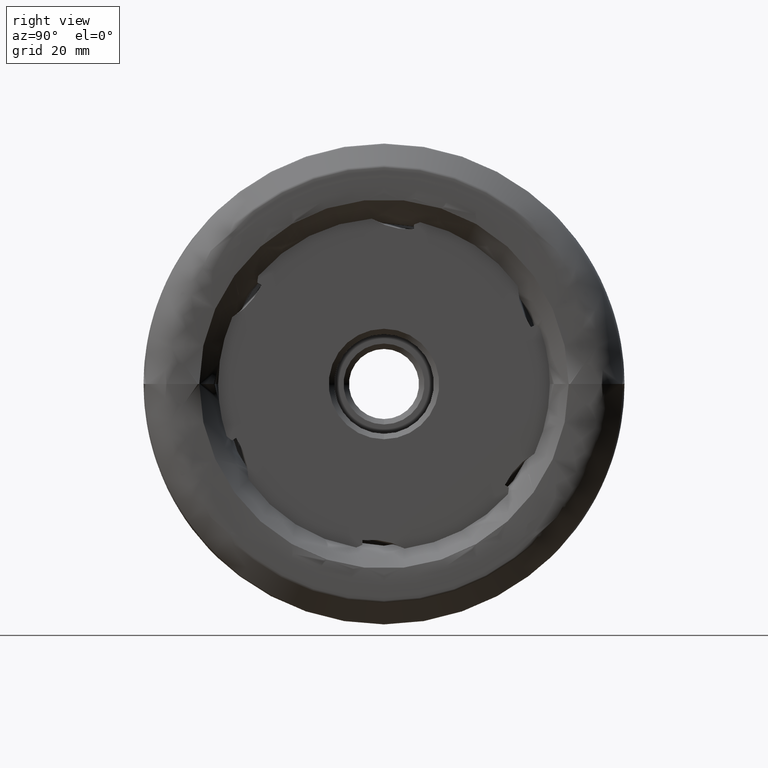
[diagram: clean part render]
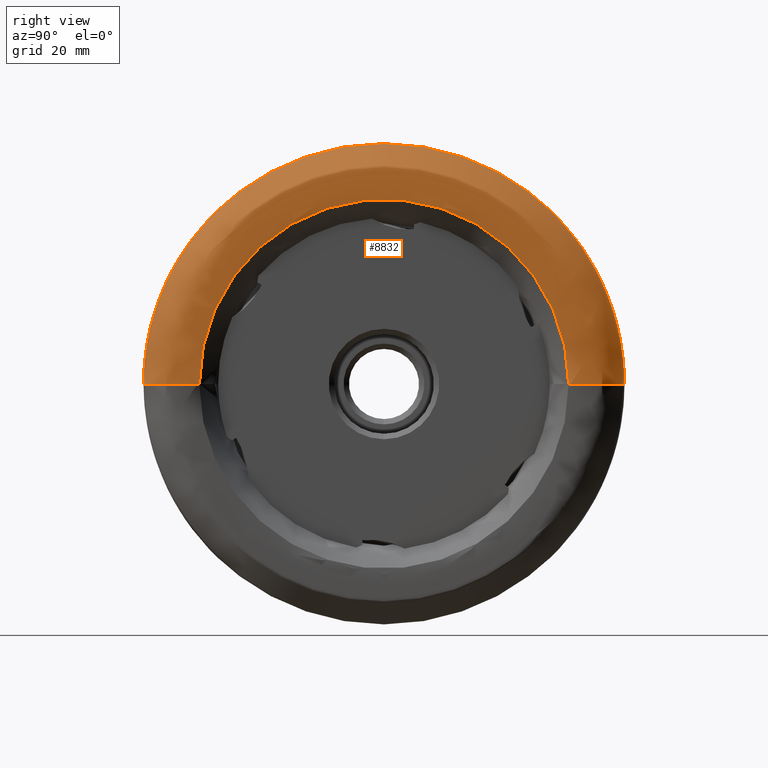
[diagram: same view with one face highlighted and labeled with its STEP entity id]
A machine part, right view. The second image highlights one B-rep face of the part: STEP entity #8832.
In plain terms, the highlighted face is a freeform B-spline surface patch.
Its self-contained STEP definition (entity closure, byte-faithful):
#19 = EDGE_CURVE ( 'NONE', #1967, #10062, #4942, .T. ) ;
#30 = CARTESIAN_POINT ( 'NONE',  ( -2.857547258039371500, -44.24553276553912400, 5.418515007788681300E-015 ) ) ;
#32 = CARTESIAN_POINT ( 'NONE',  ( 0.8509547540895763300, 34.89659801551494000, 69.79319603102986500 ) ) ;
#68 = CARTESIAN_POINT ( 'NONE',  ( 0.8281783631124288700, 39.02712218178233900, 0.0000000000000000000 ) ) ;
#101 = CARTESIAN_POINT ( 'NONE',  ( 0.7147429273705037100, 40.52220272673386600, 0.0000000000000000000 ) ) ;
#137 = CARTESIAN_POINT ( 'NONE',  ( 0.8577489872061617700, 39.55864534057265300, 79.11729068114529200 ) ) ;
#171 = CARTESIAN_POINT ( 'NONE',  ( -3.411888034541815900, -44.60575566999408900, 5.462629590480715500E-015 ) ) ;
#200 = CARTESIAN_POINT ( 'NONE',  ( -3.040789034936305100, -44.44875549938974000, 88.89751099877950900 ) ) ;
#228 = CARTESIAN_POINT ( 'NONE',  ( -6.006263750203498100, 44.59773207079095400, 89.19546414158189400 ) ) ;
#265 = CARTESIAN_POINT ( 'NONE',  ( -1.685880218017781400, 43.02580337470713800, 0.0000000000000000000 ) ) ;
#297 = CARTESIAN_POINT ( 'NONE',  ( -4.082156656787272000, 44.59971569938962000, 0.0000000000000000000 ) ) ;
#321 = CARTESIAN_POINT ( 'NONE',  ( -9.937897549921320500, -43.49536033219780500, 86.99072066439561000 ) ) ;
#354 = CARTESIAN_POINT ( 'NONE',  ( -6.791615352935969500, -44.59675962175614200, 5.461527892312757000E-015 ) ) ;
#388 = CARTESIAN_POINT ( 'NONE',  ( -9.937897549921331100, 43.49536033219781200, 86.99072066439562400 ) ) ;
#415 = CARTESIAN_POINT ( 'NONE',  ( 0.8563129192456149200, 38.55294077964669000, 0.0000000000000000000 ) ) ;
#422 = CARTESIAN_POINT ( 'NONE',  ( -11.74160571971169600, 41.61055073359398900, 0.0000000000000000000 ) ) ;
#453 = CARTESIAN_POINT ( 'NONE',  ( -10.79325729475553300, -42.60098473533624000, 5.217115959665477000E-015 ) ) ;
#479 = CARTESIAN_POINT ( 'NONE',  ( 0.6918135066200279400, -34.26065241204572900, 68.52130482409145900 ) ) ;
#560 = CARTESIAN_POINT ( 'NONE',  ( 0.2537050275753798800, 41.00064699497971800, 0.0000000000000000000 ) ) ;
#566 = DIRECTION ( 'NONE',  ( -1.075953645633044000E-016, 1.000000000000000000, 0.0000000000000000000 ) ) ;
#586 = CARTESIAN_POINT ( 'NONE',  ( -9.037115511167799700, 44.44632518124438300, 0.0000000000000000000 ) ) ;
#691 = CARTESIAN_POINT ( 'NONE',  ( -9.690875032667182900, 43.75316444833940500, 0.0000000000000000000 ) ) ;
#711 = CARTESIAN_POINT ( 'NONE',  ( 0.7370904015919900200, -34.31544975722086800, 4.202430570648235200E-015 ) ) ;
#721 = CARTESIAN_POINT ( 'NONE',  ( -8.869488128814124300, 44.57365792961629600, 0.0000000000000000000 ) ) ;
#763 = ORIENTED_EDGE ( 'NONE', *, *, #6098, .T. ) ;
#778 = CARTESIAN_POINT ( 'NONE',  ( 0.8535049897897371000, 36.98866256118815700, 73.97732512237630000 ) ) ;
#807 = CARTESIAN_POINT ( 'NONE',  ( -3.411888034541815900, -44.60575566999408900, 5.462629590480715500E-015 ) ) ;
#809 = CARTESIAN_POINT ( 'NONE',  ( 0.8271839300367778100, 35.24604635264782400, 70.49209270529563300 ) ) ;
#845 = CARTESIAN_POINT ( 'NONE',  ( 0.7147429273705135900, -40.52220272673387300, 4.962538586369478100E-015 ) ) ;
#847 = CARTESIAN_POINT ( 'NONE',  ( 0.8577489872061714300, -39.55864534057266700, 4.844536839493766100E-015 ) ) ;
#889 = CARTESIAN_POINT ( 'NONE',  ( -0.3373458993539678000, -41.61322163339939100, 5.096149867555195200E-015 ) ) ;
#890 = CARTESIAN_POINT ( 'NONE',  ( 0.7147429273705134800, -40.52220272673386600, 81.04440545346773200 ) ) ;
#928 = CARTESIAN_POINT ( 'NONE',  ( -1.685880218017771000, -43.02580337470714500, 5.269141238357848000E-015 ) ) ;
#930 = CARTESIAN_POINT ( 'NONE',  ( 0.8200688177384685100, 40.35716822564896900, 0.0000000000000000000 ) ) ;
#963 = CARTESIAN_POINT ( 'NONE',  ( -3.676313007157163700, -44.59391589396968000, 5.461179636099624200E-015 ) ) ;
#997 = CARTESIAN_POINT ( 'NONE',  ( -5.235286181612497800, -44.59774497095866500, 89.19548994191735900 ) ) ;
#1033 = CARTESIAN_POINT ( 'NONE',  ( -2.161834821111666000, 43.52247311242808100, 0.0000000000000000000 ) ) ;
#1062 = CARTESIAN_POINT ( 'NONE',  ( -1.024317240285059800, -42.33403745129263700, 84.66807490258527500 ) ) ;
#1093 = CARTESIAN_POINT ( 'NONE',  ( -4.082156656787261400, -44.59971569938962700, 5.461889907413946000E-015 ) ) ;
#1128 = CARTESIAN_POINT ( 'NONE',  ( -12.40362932795348700, -40.92572687284331300, 81.85145374568661200 ) ) ;
#1163 = CARTESIAN_POINT ( 'NONE',  ( -9.437275947955262400, -44.02027069702258200, 88.04054139404517800 ) ) ;
#1196 = CARTESIAN_POINT ( 'NONE',  ( -12.12578667149713500, 41.20390703517603000, 0.0000000000000000000 ) ) ;
#1221 = CARTESIAN_POINT ( 'NONE',  ( 0.8550758284377958400, 34.64878102038525800, 0.0000000000000000000 ) ) ;
#1228 = CARTESIAN_POINT ( 'NONE',  ( -12.12578667149712400, -41.20390703517603700, 5.046023286299343200E-015 ) ) ;
#1265 = CARTESIAN_POINT ( 'NONE',  ( -9.690875032667182900, 43.75316444833941200, 87.50632889667882400 ) ) ;
#1328 = CARTESIAN_POINT ( 'NONE',  ( 0.8509547540895763300, 34.89659801551494000, 0.0000000000000000000 ) ) ;
#1362 = CARTESIAN_POINT ( 'NONE',  ( -2.564873001782992800, 43.94741812827402300, 0.0000000000000000000 ) ) ;
#1403 = CARTESIAN_POINT ( 'NONE',  ( -11.32576151948207300, 42.04363582463820100, 0.0000000000000000000 ) ) ;
#1410 = CARTESIAN_POINT ( 'NONE',  ( -12.56707975135014800, 40.77434408307883700, 0.0000000000000000000 ) ) ;
#1587 = CARTESIAN_POINT ( 'NONE',  ( 0.8244240272102382200, -36.42198083215118500, 4.460406224470018900E-015 ) ) ;
#1588 = CARTESIAN_POINT ( 'NONE',  ( 0.8550758284378042800, -34.64878102038526500, 4.243251877097237300E-015 ) ) ;
#1623 = CARTESIAN_POINT ( 'NONE',  ( -6.791615352935969500, -44.59675962175614200, 5.461527892312757000E-015 ) ) ;
#1625 = CARTESIAN_POINT ( 'NONE',  ( 0.8271839300367778100, 35.24604635264782400, 0.0000000000000000000 ) ) ;
#1667 = CARTESIAN_POINT ( 'NONE',  ( -6.006263750203488300, -44.59773207079095400, 5.461646982972539600E-015 ) ) ;
#1668 = CARTESIAN_POINT ( 'NONE',  ( 0.8529010014972986400, -40.00270055782285500, 4.898917919538779000E-015 ) ) ;
#1697 = CARTESIAN_POINT ( 'NONE',  ( -3.194373711674057600, -44.56864490838977100, 5.458084832939450800E-015 ) ) ;
#1698 = CARTESIAN_POINT ( 'NONE',  ( 0.8268846359753936300, 34.43496531841479000, 0.0000000000000000000 ) ) ;
#1733 = CARTESIAN_POINT ( 'NONE',  ( -5.235286181612497800, -44.59774497095868600, 5.461648562787451200E-015 ) ) ;
#1734 = CARTESIAN_POINT ( 'NONE',  ( 0.8200688177384782800, -40.35716822564897700, 4.942327689019227800E-015 ) ) ;
#1771 = CARTESIAN_POINT ( 'NONE',  ( -3.194373711674068700, 44.56864490838976400, 0.0000000000000000000 ) ) ;
#1806 = CARTESIAN_POINT ( 'NONE',  ( -5.235286181612497800, -44.59774497095868600, 5.461648562787451200E-015 ) ) ;
#1821 = CARTESIAN_POINT ( 'NONE',  ( -12.61780826664820400, -3.839212668593813500E-015, 0.0000000000000000000 ) ) ;
#1838 = CARTESIAN_POINT ( 'NONE',  ( -2.564873001782992400, 43.94741812827403000, 87.89483625654804700 ) ) ;
#1868 = CARTESIAN_POINT ( 'NONE',  ( -0.3373458993539678000, -41.61322163339939100, 5.096149867555195200E-015 ) ) ;
#1900 = CARTESIAN_POINT ( 'NONE',  ( -4.551876553009373400, 44.59708507197870400, 0.0000000000000000000 ) ) ;
#1933 = CARTESIAN_POINT ( 'NONE',  ( -7.459931373188229700, 44.59910180076296600, 0.0000000000000000000 ) ) ;
#1967 = VERTEX_POINT ( 'NONE', #6851 ) ;
#1971 = CARTESIAN_POINT ( 'NONE',  ( -8.869488128814124300, 44.57365792961629600, 89.14731585923257700 ) ) ;
#1990 = ORIENTED_EDGE ( 'NONE', *, *, #8937, .F. ) ;
#2007 = CARTESIAN_POINT ( 'NONE',  ( -8.036312695753661500, 44.58888911488936200, 0.0000000000000000000 ) ) ;
#2036 = CARTESIAN_POINT ( 'NONE',  ( -1.024317240285070000, 42.33403745129263000, 0.0000000000000000000 ) ) ;
#2040 = CARTESIAN_POINT ( 'NONE',  ( -6.791615352935969500, -44.59675962175612100, 89.19351924351227000 ) ) ;
#2070 = CARTESIAN_POINT ( 'NONE',  ( -9.037115511167799700, 44.44632518124438300, 0.0000000000000000000 ) ) ;
#2130 = CARTESIAN_POINT ( 'NONE',  ( 0.8281783631124288700, 39.02712218178233900, 0.0000000000000000000 ) ) ;
#2157 = CARTESIAN_POINT ( 'NONE',  ( -9.937897549921331100, 43.49536033219781200, 0.0000000000000000000 ) ) ;
#2249 = CARTESIAN_POINT ( 'NONE',  ( -6.006263750203499000, 44.59773207079094700, 0.0000000000000000000 ) ) ;
#2299 = CARTESIAN_POINT ( 'NONE',  ( 0.8268846359754019600, -34.43496531841479700, 4.217067005594679900E-015 ) ) ;
#2373 = CARTESIAN_POINT ( 'NONE',  ( 0.8509547540895847600, -34.89659801551494700, 4.273600706083224900E-015 ) ) ;
#2412 = CARTESIAN_POINT ( 'NONE',  ( 0.8550758284377958400, 34.64878102038525800, 0.0000000000000000000 ) ) ;
#2445 = CARTESIAN_POINT ( 'NONE',  ( -8.036312695753650800, -44.58888911488936900, 5.460564033208551900E-015 ) ) ;
#2446 = CARTESIAN_POINT ( 'NONE',  ( 0.8529010014972888700, 40.00270055782284100, 80.00540111564566800 ) ) ;
#2485 = CARTESIAN_POINT ( 'NONE',  ( -10.34059757357388100, -43.07404444301239000, 5.275049065346595300E-015 ) ) ;
#2486 = CARTESIAN_POINT ( 'NONE',  ( 0.8661904671703387600, 35.78777477931783600, 71.57554955863565700 ) ) ;
#2522 = CARTESIAN_POINT ( 'NONE',  ( -12.56707975135013400, -40.77434408307885100, 4.993416996867532300E-015 ) ) ;
#2523 = CARTESIAN_POINT ( 'NONE',  ( 0.8577489872061617700, 39.55864534057266000, 0.0000000000000000000 ) ) ;
#2557 = CARTESIAN_POINT ( 'NONE',  ( 0.5394270403904379800, -40.69476609026918400, 4.983671503449839900E-015 ) ) ;
#2588 = CARTESIAN_POINT ( 'NONE',  ( -6.006263750203499000, 44.59773207079094700, 0.0000000000000000000 ) ) ;
#2608 = CIRCLE ( 'NONE', #7596, 34.26065241204573700 ) ;
#2627 = CARTESIAN_POINT ( 'NONE',  ( -1.685880218017771000, -43.02580337470713100, 86.05160674941427600 ) ) ;
#2668 = CARTESIAN_POINT ( 'NONE',  ( -2.857547258039382100, 44.24553276553911700, 0.0000000000000000000 ) ) ;
#2701 = CARTESIAN_POINT ( 'NONE',  ( -8.869488128814113600, -44.57365792961628900, 89.14731585923259200 ) ) ;
#2735 = CARTESIAN_POINT ( 'NONE',  ( -9.216923002752205100, -44.24400898714824800, 5.418328398755781900E-015 ) ) ;
#2764 = ORIENTED_EDGE ( 'NONE', *, *, #19, .F. ) ;
#2770 = CARTESIAN_POINT ( 'NONE',  ( -8.519304146182705000, -44.61938358472999500, 5.464298528696753200E-015 ) ) ;
#2802 = CARTESIAN_POINT ( 'NONE',  ( -11.74160571971168700, -41.61055073359398900, 83.22110146718796400 ) ) ;
#2829 = CARTESIAN_POINT ( 'NONE',  ( -3.040789034936315800, 44.44875549938975500, 0.0000000000000000000 ) ) ;
#2834 = CARTESIAN_POINT ( 'NONE',  ( -11.32576151948206300, -42.04363582463820800, 5.148860403716016600E-015 ) ) ;
#2862 = CARTESIAN_POINT ( 'NONE',  ( -1.685880218017781400, 43.02580337470713800, 0.0000000000000000000 ) ) ;
#2936 = CARTESIAN_POINT ( 'NONE',  ( 0.7147429273705037100, 40.52220272673386600, 0.0000000000000000000 ) ) ;
#2999 = CARTESIAN_POINT ( 'NONE',  ( -5.235286181612508500, 44.59774497095867900, 0.0000000000000000000 ) ) ;
#3035 = CARTESIAN_POINT ( 'NONE',  ( -9.216923002752215800, 44.24400898714824100, 0.0000000000000000000 ) ) ;
#3069 = CARTESIAN_POINT ( 'NONE',  ( -11.74160571971169600, 41.61055073359398900, 0.0000000000000000000 ) ) ;
#3152 = EDGE_CURVE ( 'NONE', #8586, #10062, #8500, .T. ) ;
#3160 = CARTESIAN_POINT ( 'NONE',  ( 0.8281783631124382000, -39.02712218178233200, 78.05424436356466300 ) ) ;
#3196 = CARTESIAN_POINT ( 'NONE',  ( 0.8529010014972986400, -40.00270055782285500, 4.898917919538779000E-015 ) ) ;
#3197 = CARTESIAN_POINT ( 'NONE',  ( 0.8661904671703388700, 35.78777477931783600, 0.0000000000000000000 ) ) ;
#3232 = CARTESIAN_POINT ( 'NONE',  ( 0.8563129192456242500, -38.55294077964669700, 4.721373552351177600E-015 ) ) ;
#3270 = CARTESIAN_POINT ( 'NONE',  ( -7.459931373188219100, -44.59910180076297300, 5.461814726515132200E-015 ) ) ;
#3273 = CARTESIAN_POINT ( 'NONE',  ( 0.8244240272102381100, -36.42198083215118500, 72.84396166430237000 ) ) ;
#3307 = CARTESIAN_POINT ( 'NONE',  ( -3.040789034936305100, -44.44875549938976200, 5.443402614841097000E-015 ) ) ;
#3309 = CARTESIAN_POINT ( 'NONE',  ( 0.8244240272102382200, -36.42198083215118500, 4.460406224470018900E-015 ) ) ;
#3338 = CARTESIAN_POINT ( 'NONE',  ( -4.551876553009362800, -44.59708507197871100, 5.461567748470092400E-015 ) ) ;
#3374 = CARTESIAN_POINT ( 'NONE',  ( -5.235286181612508500, 44.59774497095867900, 89.19548994191733000 ) ) ;
#3389 = DIRECTION ( 'NONE',  ( 1.000000000000000000, 1.214151309682137500E-016, -0.0000000000000000000 ) ) ;
#3407 = CARTESIAN_POINT ( 'NONE',  ( -2.161834821111655800, -43.52247311242808800, 5.329965738811179600E-015 ) ) ;
#3442 = CARTESIAN_POINT ( 'NONE',  ( -3.411888034541827000, 44.60575566999408200, 0.0000000000000000000 ) ) ;
#3471 = CARTESIAN_POINT ( 'NONE',  ( -3.411888034541827400, 44.60575566999408200, 89.21151133998816400 ) ) ;
#3505 = CARTESIAN_POINT ( 'NONE',  ( -8.519304146182715700, 44.61938358472998800, 89.23876716945996200 ) ) ;
#3539 = CARTESIAN_POINT ( 'NONE',  ( -9.690875032667172200, -43.75316444833941200, 5.358217279422662100E-015 ) ) ;
#3570 = CARTESIAN_POINT ( 'NONE',  ( -11.32576151948206300, -42.04363582463820100, 84.08727164927638900 ) ) ;
#3601 = CARTESIAN_POINT ( 'NONE',  ( 0.8271839300367778100, 35.24604635264782400, 0.0000000000000000000 ) ) ;
#3606 = CARTESIAN_POINT ( 'NONE',  ( -10.34059757357389100, 43.07404444301238300, 0.0000000000000000000 ) ) ;
#3633 = CARTESIAN_POINT ( 'NONE',  ( 0.8494888467939487600, 37.53217309214602400, 0.0000000000000000000 ) ) ;
#3642 = CARTESIAN_POINT ( 'NONE',  ( -8.519304146182705000, -44.61938358472998100, 89.23876716945997600 ) ) ;
#3668 = CARTESIAN_POINT ( 'NONE',  ( 0.8200688177384685100, 40.35716822564896900, 0.0000000000000000000 ) ) ;
#3715 = CARTESIAN_POINT ( 'NONE',  ( -12.56707975135013700, -40.77434408307884400, 4.993416996867532300E-015 ) ) ;
#3781 = CARTESIAN_POINT ( 'NONE',  ( -10.79325729475554300, 42.60098473533623300, 0.0000000000000000000 ) ) ;
#3812 = CARTESIAN_POINT ( 'NONE',  ( 0.6918135066200195000, 34.26065241204573700, 0.0000000000000000000 ) ) ;
#3822 = CARTESIAN_POINT ( 'NONE',  ( -12.40362932795348700, -40.92572687284332000, 5.011956041760638400E-015 ) ) ;
#3870 =( BOUNDED_SURFACE ( )  B_SPLINE_SURFACE ( 3, 3, ( 
 ( #3812, #9218, #479, #7296 ),
 ( #9577, #4850, #6472, #7259 ),
 ( #1698, #9617, #3963, #5568 ),
 ( #2412, #6406, #4783, #1588 ),
 ( #4103, #32, #7146, #2373 ),
 ( #1625, #809, #7954, #5595 ),
 ( #3197, #2486, #4745, #3995 ),
 ( #6511, #8033, #3273, #3309 ),
 ( #4896, #778, #8815, #6371 ),
 ( #4070, #4814, #8064, #8778 ),
 ( #8744, #8852, #9544, #7176 ),
 ( #7992, #9516, #9653, #3232 ),
 ( #68, #4036, #3160, #5634 ),
 ( #2523, #137, #5704, #847 ),
 ( #10299, #2446, #6444, #1668 ),
 ( #930, #8709, #7216, #1734 ),
 ( #101, #5668, #890, #8889 ),
 ( #9722, #5808, #5737, #2557 ),
 ( #8989, #7420, #9824, #4143 ),
 ( #7326, #9688, #4211, #1868 ),
 ( #7359, #4971, #1062, #4934 ),
 ( #265, #8169, #2627, #8920 ),
 ( #1033, #6611, #9792, #3407 ),
 ( #8200, #1838, #7391, #4275 ),
 ( #2668, #6667, #6642, #4180 ),
 ( #5062, #5038, #200, #8100 ),
 ( #1771, #9762, #5841, #8233 ),
 ( #3442, #3471, #4242, #171 ),
 ( #5770, #5006, #9022, #963 ),
 ( #297, #5876, #8136, #1093 ),
 ( #1900, #6581, #7450, #3338 ),
 ( #6547, #3374, #997, #1806 ),
 ( #2588, #228, #8955, #5094 ),
 ( #9921, #6695, #2040, #354 ),
 ( #1933, #9954, #5128, #8364 ),
 ( #2007, #5945, #6053, #5169 ),
 ( #5913, #3505, #3642, #2770 ),
 ( #4366, #1971, #2701, #9085 ),
 ( #2070, #9988, #6795, #7491 ),
 ( #9855, #7558, #4334, #2735 ),
 ( #8394, #8267, #1163, #9196 ),
 ( #6726, #1265, #8293, #3539 ),
 ( #9885, #388, #321, #7523 ),
 ( #3606, #7590, #4440, #9051 ),
 ( #5241, #9161, #4402, #453 ),
 ( #8325, #5198, #3570, #2834 ),
 ( #422, #9128, #2802, #5979 ),
 ( #1196, #6765, #6016, #1228 ),
 ( #6829, #4307, #1128, #3822 ),
 ( #1410, #6223, #6190, #3715 ),
 ( #4598, #9338, #10049, #7626 ) ),
 .UNSPECIFIED., .F., .F., .F. ) 
 B_SPLINE_SURFACE_WITH_KNOTS ( ( 4, 1, 1, 1, 1, 1, 1, 1, 1, 1, 1, 1, 1, 1, 1, 1, 1, 1, 1, 1, 1, 1, 1, 1, 1, 1, 1, 1, 1, 1, 1, 1, 1, 1, 1, 1, 1, 1, 1, 1, 1, 1, 1, 1, 1, 1, 1, 1, 4 ),
 ( 4, 4 ),
 ( 0.0000000000000000000, 0.004585205868869694300, 0.009555338785841614000, 0.01364510371246304200, 0.02083333693028275500, 0.03234754241875172800, 0.04901750361689164600, 0.06221460356393385800, 0.06934120355028777800, 0.08448146237685376400, 0.09445903366863565900, 0.1037023706445401200, 0.1154502966075726400, 0.1291232891281438000, 0.1327759396219717600, 0.1384462956328198500, 0.1413487620863585800, 0.1488813563808930300, 0.1657181892683783100, 0.1969259611364176900, 0.2138426416728223300, 0.2281837018743229100, 0.2418094101250725900, 0.2520770836508687800, 0.2554056266400155900, 0.2597121181433771900, 0.2644675166587636100, 0.2693859197494166700, 0.2770352483043920200, 0.2909173630968417400, 0.3000526436999086400, 0.3216267476983636400, 0.3412311129069803300, 0.3512941306468326800, 0.3652507230532056100, 0.3787859787379637100, 0.3829810441334750000, 0.3878478927399580100, 0.3920443844403347900, 0.4007232620734803000, 0.4082948248650746200, 0.4160910222379702300, 0.4240191201008264900, 0.4463275583533074000, 0.4588157765488829500, 0.4743192116254402200, 0.4855112707350934800, 0.4953079174321411400, 0.5000000000000001100 ),
 ( 0.0000000000000000000, 1.000000000000000000 ),
 .UNSPECIFIED. ) 
 GEOMETRIC_REPRESENTATION_ITEM ( )  RATIONAL_B_SPLINE_SURFACE ( (
 ( 1.000000000000000000, 0.3333333333333334300, 0.3333333333333334300, 1.000000000000000000),
 ( 1.000000000000000000, 0.3333333333333334300, 0.3333333333333334300, 1.000000000000000000),
 ( 1.000000000000000000, 0.3333333333333334300, 0.3333333333333334300, 1.000000000000000000),
 ( 1.000000000000000000, 0.3333333333333334300, 0.3333333333333334300, 1.000000000000000000),
 ( 1.000000000000000000, 0.3333333333333334300, 0.3333333333333334300, 1.000000000000000000),
 ( 1.000000000000000000, 0.3333333333333334300, 0.3333333333333334300, 1.000000000000000000),
 ( 1.000000000000000000, 0.3333333333333334300, 0.3333333333333334300, 1.000000000000000000),
 ( 1.000000000000000000, 0.3333333333333334300, 0.3333333333333334300, 1.000000000000000000),
 ( 1.000000000000000000, 0.3333333333333334300, 0.3333333333333334300, 1.000000000000000000),
 ( 1.000000000000000000, 0.3333333333333334300, 0.3333333333333334300, 1.000000000000000000),
 ( 1.000000000000000000, 0.3333333333333334300, 0.3333333333333334300, 1.000000000000000000),
 ( 1.000000000000000000, 0.3333333333333334300, 0.3333333333333334300, 1.000000000000000000),
 ( 1.000000000000000000, 0.3333333333333334300, 0.3333333333333334300, 1.000000000000000000),
 ( 1.000000000000000000, 0.3333333333333334300, 0.3333333333333334300, 1.000000000000000000),
 ( 1.000000000000000000, 0.3333333333333334300, 0.3333333333333334300, 1.000000000000000000),
 ( 1.000000000000000000, 0.3333333333333334300, 0.3333333333333334300, 1.000000000000000000),
 ( 1.000000000000000000, 0.3333333333333334300, 0.3333333333333334300, 1.000000000000000000),
 ( 1.000000000000000000, 0.3333333333333334300, 0.3333333333333334300, 1.000000000000000000),
 ( 1.000000000000000000, 0.3333333333333334300, 0.3333333333333334300, 1.000000000000000000),
 ( 1.000000000000000000, 0.3333333333333334300, 0.3333333333333334300, 1.000000000000000000),
 ( 1.000000000000000000, 0.3333333333333334300, 0.3333333333333334300, 1.000000000000000000),
 ( 1.000000000000000000, 0.3333333333333334300, 0.3333333333333334300, 1.000000000000000000),
 ( 1.000000000000000000, 0.3333333333333334300, 0.3333333333333334300, 1.000000000000000000),
 ( 1.000000000000000000, 0.3333333333333334300, 0.3333333333333334300, 1.000000000000000000),
 ( 1.000000000000000000, 0.3333333333333334300, 0.3333333333333334300, 1.000000000000000000),
 ( 1.000000000000000000, 0.3333333333333334300, 0.3333333333333334300, 1.000000000000000000),
 ( 1.000000000000000000, 0.3333333333333334300, 0.3333333333333334300, 1.000000000000000000),
 ( 1.000000000000000000, 0.3333333333333334300, 0.3333333333333334300, 1.000000000000000000),
 ( 1.000000000000000000, 0.3333333333333334300, 0.3333333333333334300, 1.000000000000000000),
 ( 1.000000000000000000, 0.3333333333333334300, 0.3333333333333334300, 1.000000000000000000),
 ( 1.000000000000000000, 0.3333333333333334300, 0.3333333333333334300, 1.000000000000000000),
 ( 1.000000000000000000, 0.3333333333333334300, 0.3333333333333334300, 1.000000000000000000),
 ( 1.000000000000000000, 0.3333333333333334300, 0.3333333333333334300, 1.000000000000000000),
 ( 1.000000000000000000, 0.3333333333333334300, 0.3333333333333334300, 1.000000000000000000),
 ( 1.000000000000000000, 0.3333333333333334300, 0.3333333333333334300, 1.000000000000000000),
 ( 1.000000000000000000, 0.3333333333333334300, 0.3333333333333334300, 1.000000000000000000),
 ( 1.000000000000000000, 0.3333333333333334300, 0.3333333333333334300, 1.000000000000000000),
 ( 1.000000000000000000, 0.3333333333333334300, 0.3333333333333334300, 1.000000000000000000),
 ( 1.000000000000000000, 0.3333333333333334300, 0.3333333333333334300, 1.000000000000000000),
 ( 1.000000000000000000, 0.3333333333333334300, 0.3333333333333334300, 1.000000000000000000),
 ( 1.000000000000000000, 0.3333333333333334300, 0.3333333333333334300, 1.000000000000000000),
 ( 1.000000000000000000, 0.3333333333333334300, 0.3333333333333334300, 1.000000000000000000),
 ( 1.000000000000000000, 0.3333333333333334300, 0.3333333333333334300, 1.000000000000000000),
 ( 1.000000000000000000, 0.3333333333333334300, 0.3333333333333334300, 1.000000000000000000),
 ( 1.000000000000000000, 0.3333333333333334300, 0.3333333333333334300, 1.000000000000000000),
 ( 1.000000000000000000, 0.3333333333333334300, 0.3333333333333334300, 1.000000000000000000),
 ( 1.000000000000000000, 0.3333333333333334300, 0.3333333333333334300, 1.000000000000000000),
 ( 1.000000000000000000, 0.3333333333333334300, 0.3333333333333334300, 1.000000000000000000),
 ( 1.000000000000000000, 0.3333333333333334300, 0.3333333333333334300, 1.000000000000000000),
 ( 1.000000000000000000, 0.3333333333333334300, 0.3333333333333334300, 1.000000000000000000),
 ( 1.000000000000000000, 0.3333333333333334300, 0.3333333333333334300, 1.000000000000000000) ) ) 
 REPRESENTATION_ITEM ( '' )  SURFACE ( )  );
#3874 = CARTESIAN_POINT ( 'NONE',  ( -9.437275947955273000, 44.02027069702258900, 0.0000000000000000000 ) ) ;
#3913 = CARTESIAN_POINT ( 'NONE',  ( -6.791615352935980200, 44.59675962175613500, 0.0000000000000000000 ) ) ;
#3963 = CARTESIAN_POINT ( 'NONE',  ( 0.8268846359754018500, -34.43496531841479000, 68.86993063682957900 ) ) ;
#3993 = CARTESIAN_POINT ( 'NONE',  ( 0.8281783631124383100, -39.02712218178234600, 4.779444025985240200E-015 ) ) ;
#3995 = CARTESIAN_POINT ( 'NONE',  ( 0.8661904671703475300, -35.78777477931784300, 4.382738383209795500E-015 ) ) ;
#4034 = CARTESIAN_POINT ( 'NONE',  ( -3.676313007157163700, -44.59391589396968000, 5.461179636099624200E-015 ) ) ;
#4036 = CARTESIAN_POINT ( 'NONE',  ( 0.8281783631124288700, 39.02712218178233200, 78.05424436356466300 ) ) ;
#4069 = CARTESIAN_POINT ( 'NONE',  ( -4.082156656787261400, -44.59971569938962700, 5.461889907413946000E-015 ) ) ;
#4070 = CARTESIAN_POINT ( 'NONE',  ( 0.8494888467939487600, 37.53217309214602400, 0.0000000000000000000 ) ) ;
#4102 = CARTESIAN_POINT ( 'NONE',  ( -9.690875032667172200, -43.75316444833941200, 5.358217279422662100E-015 ) ) ;
#4103 = CARTESIAN_POINT ( 'NONE',  ( 0.8509547540895763300, 34.89659801551494000, 0.0000000000000000000 ) ) ;
#4142 = CARTESIAN_POINT ( 'NONE',  ( 0.8200688177384782800, -40.35716822564897700, 4.942327689019227800E-015 ) ) ;
#4143 = CARTESIAN_POINT ( 'NONE',  ( 0.2537050275753898200, -41.00064699497972500, 5.021131110537246000E-015 ) ) ;
#4180 = CARTESIAN_POINT ( 'NONE',  ( -2.857547258039371500, -44.24553276553912400, 5.418515007788681300E-015 ) ) ;
#4211 = CARTESIAN_POINT ( 'NONE',  ( -0.3373458993539678000, -41.61322163339939100, 83.22644326679878200 ) ) ;
#4242 = CARTESIAN_POINT ( 'NONE',  ( -3.411888034541815900, -44.60575566999408200, 89.21151133998816400 ) ) ;
#4275 = CARTESIAN_POINT ( 'NONE',  ( -2.564873001782981700, -43.94741812827403000, 5.382006494158114900E-015 ) ) ;
#4307 = CARTESIAN_POINT ( 'NONE',  ( -12.40362932795349800, 40.92572687284331300, 81.85145374568662600 ) ) ;
#4334 = CARTESIAN_POINT ( 'NONE',  ( -9.216923002752203300, -44.24400898714823400, 88.48801797429648300 ) ) ;
#4366 = CARTESIAN_POINT ( 'NONE',  ( -8.869488128814124300, 44.57365792961629600, 0.0000000000000000000 ) ) ;
#4402 = CARTESIAN_POINT ( 'NONE',  ( -10.79325729475553300, -42.60098473533622600, 85.20196947067245200 ) ) ;
#4433 = CARTESIAN_POINT ( 'NONE',  ( -3.411888034541827000, 44.60575566999408200, 0.0000000000000000000 ) ) ;
#4440 = CARTESIAN_POINT ( 'NONE',  ( -10.34059757357388100, -43.07404444301237600, 86.14808888602475200 ) ) ;
#4468 = CARTESIAN_POINT ( 'NONE',  ( 0.8244240272102293400, 36.42198083215117800, 0.0000000000000000000 ) ) ;
#4598 = CARTESIAN_POINT ( 'NONE',  ( -12.61780826664821100, 40.72330260160279600, 0.0000000000000000000 ) ) ;
#4657 = CARTESIAN_POINT ( 'NONE',  ( -12.12578667149713500, 41.20390703517603000, 0.0000000000000000000 ) ) ;
#4688 = CARTESIAN_POINT ( 'NONE',  ( -12.40362932795349800, 40.92572687284331300, 0.0000000000000000000 ) ) ;
#4706 = CARTESIAN_POINT ( 'NONE',  ( 0.8509547540895847600, -34.89659801551494700, 4.273600706083224900E-015 ) ) ;
#4745 = CARTESIAN_POINT ( 'NONE',  ( 0.8661904671703474200, -35.78777477931783600, 71.57554955863567200 ) ) ;
#4783 = CARTESIAN_POINT ( 'NONE',  ( 0.8550758284378043900, -34.64878102038526500, 69.29756204077052900 ) ) ;
#4814 = CARTESIAN_POINT ( 'NONE',  ( 0.8494888467939487600, 37.53217309214602400, 75.06434618429203500 ) ) ;
#4820 = B_SPLINE_CURVE_WITH_KNOTS ( 'NONE', 3,
 ( #9293, #8357, #5192, #1221, #1328, #3601, #9980, #4468, #7620, #3633, #6891, #415, #2130, #7688, #5337, #3668, #2936, #9188, #560, #6790, #2036, #2862, #6151, #1362, #7551, #2829, #8388, #4433, #5233, #6044, #5474, #2999, #2249, #3913, #8622, #9365, #6928, #721, #586, #3035, #3874, #691, #2157, #9425, #3781, #1403, #3069, #4657, #4688, #6215, #10144 ),
 .UNSPECIFIED., .F., .F.,
 ( 4, 1, 1, 1, 1, 1, 1, 1, 1, 1, 1, 1, 1, 1, 1, 1, 1, 1, 1, 1, 1, 1, 1, 1, 1, 1, 1, 1, 1, 1, 1, 1, 1, 1, 1, 1, 1, 1, 1, 1, 1, 1, 1, 1, 1, 1, 1, 1, 4 ),
 ( 0.0000000000000000000, 0.004585205868869694300, 0.009555338785841614000, 0.01364510371246304200, 0.02083333693028275500, 0.03234754241875172800, 0.04901750361689164600, 0.06221460356393385800, 0.06934120355028777800, 0.08448146237685376400, 0.09445903366863565900, 0.1037023706445401200, 0.1154502966075726400, 0.1291232891281438000, 0.1327759396219717600, 0.1384462956328198500, 0.1413487620863585800, 0.1488813563808930300, 0.1657181892683783100, 0.1969259611364176900, 0.2138426416728223300, 0.2281837018743229100, 0.2418094101250725900, 0.2520770836508687800, 0.2554056266400155900, 0.2597121181433771900, 0.2644675166587636100, 0.2693859197494166700, 0.2770352483043920200, 0.2909173630968417400, 0.3000526436999086400, 0.3216267476983636400, 0.3412311129069803300, 0.3512941306468326800, 0.3652507230532056100, 0.3787859787379637100, 0.3829810441334750000, 0.3878478927399580100, 0.3920443844403347900, 0.4007232620734803000, 0.4082948248650746200, 0.4160910222379702300, 0.4240191201008264900, 0.4463275583533074000, 0.4588157765488829500, 0.4743192116254402200, 0.4855112707350934800, 0.4953079174321411400, 0.5000000000000001100 ),
 .UNSPECIFIED. ) ;
#4849 = CARTESIAN_POINT ( 'NONE',  ( -10.79325729475553300, -42.60098473533624000, 5.217115959665477000E-015 ) ) ;
#4850 = CARTESIAN_POINT ( 'NONE',  ( 0.7370904015919816900, 34.31544975722086800, 68.63089951444170800 ) ) ;
#4896 = CARTESIAN_POINT ( 'NONE',  ( 0.8535049897897369900, 36.98866256118815700, 0.0000000000000000000 ) ) ;
#4926 = CARTESIAN_POINT ( 'NONE',  ( -12.61780826664820900, 40.72330260160279600, 0.0000000000000000000 ) ) ;
#4933 = CARTESIAN_POINT ( 'NONE',  ( 0.8494888467939578600, -37.53217309214603100, 4.596365564234104600E-015 ) ) ;
#4934 = CARTESIAN_POINT ( 'NONE',  ( -1.024317240285059800, -42.33403745129263700, 5.184424345970969400E-015 ) ) ;
#4942 = B_SPLINE_CURVE_WITH_KNOTS ( 'NONE', 3,
 ( #10196, #711, #2299, #7882, #4706, #10266, #5533, #1587, #5632, #4933, #8743, #6510, #3993, #7952, #3196, #4142, #845, #8814, #9576, #889, #6443, #928, #5703, #7258, #30, #3307, #1697, #807, #4034, #4069, #6405, #1733, #1667, #1623, #3270, #2445, #7295, #8850, #9615, #7990, #9686, #4102, #5736, #2485, #4849, #6369, #9543, #7215, #7175, #2522, #8099 ),
 .UNSPECIFIED., .F., .F.,
 ( 4, 1, 1, 1, 1, 1, 1, 1, 1, 1, 1, 1, 1, 1, 1, 1, 1, 1, 1, 1, 1, 1, 1, 1, 1, 1, 1, 1, 1, 1, 1, 1, 1, 1, 1, 1, 1, 1, 1, 1, 1, 1, 1, 1, 1, 1, 1, 1, 4 ),
 ( 0.0000000000000000000, 0.004585205868869694300, 0.009555338785841614000, 0.01364510371246304200, 0.02083333693028275500, 0.03234754241875172800, 0.04901750361689164600, 0.06221460356393385800, 0.06934120355028777800, 0.08448146237685376400, 0.09445903366863565900, 0.1037023706445401200, 0.1154502966075726400, 0.1291232891281438000, 0.1327759396219717600, 0.1384462956328198500, 0.1413487620863585800, 0.1488813563808930300, 0.1657181892683783100, 0.1969259611364176900, 0.2138426416728223300, 0.2281837018743229100, 0.2418094101250725900, 0.2520770836508687800, 0.2554056266400155900, 0.2597121181433771900, 0.2644675166587636100, 0.2693859197494166700, 0.2770352483043920200, 0.2909173630968417400, 0.3000526436999086400, 0.3216267476983636400, 0.3412311129069803300, 0.3512941306468326800, 0.3652507230532056100, 0.3787859787379637100, 0.3829810441334750000, 0.3878478927399580100, 0.3920443844403347900, 0.4007232620734803000, 0.4082948248650746200, 0.4160910222379702300, 0.4240191201008264900, 0.4463275583533074000, 0.4588157765488829500, 0.4743192116254402200, 0.4855112707350934800, 0.4953079174321411400, 0.5000000000000000000 ),
 .UNSPECIFIED. ) ;
#4971 = CARTESIAN_POINT ( 'NONE',  ( -1.024317240285069800, 42.33403745129263700, 84.66807490258526100 ) ) ;
#4984 = DIRECTION ( 'NONE',  ( -8.519561848643047500E-017, 1.000000000000000000, 0.0000000000000000000 ) ) ;
#5006 = CARTESIAN_POINT ( 'NONE',  ( -3.676313007157174400, 44.59391589396968000, 89.18783178793933100 ) ) ;
#5038 = CARTESIAN_POINT ( 'NONE',  ( -3.040789034936315800, 44.44875549938975500, 88.89751099877948100 ) ) ;
#5062 = CARTESIAN_POINT ( 'NONE',  ( -3.040789034936315800, 44.44875549938975500, 0.0000000000000000000 ) ) ;
#5094 = CARTESIAN_POINT ( 'NONE',  ( -6.006263750203488300, -44.59773207079095400, 5.461646982972539600E-015 ) ) ;
#5128 = CARTESIAN_POINT ( 'NONE',  ( -7.459931373188220000, -44.59910180076295900, 89.19820360152593300 ) ) ;
#5169 = CARTESIAN_POINT ( 'NONE',  ( -8.036312695753650800, -44.58888911488936900, 5.460564033208551900E-015 ) ) ;
#5192 = CARTESIAN_POINT ( 'NONE',  ( 0.8268846359753936300, 34.43496531841479000, 0.0000000000000000000 ) ) ;
#5198 = CARTESIAN_POINT ( 'NONE',  ( -11.32576151948207300, 42.04363582463820100, 84.08727164927640300 ) ) ;
#5233 = CARTESIAN_POINT ( 'NONE',  ( -3.676313007157174800, 44.59391589396967200, 0.0000000000000000000 ) ) ;
#5241 = CARTESIAN_POINT ( 'NONE',  ( -10.79325729475554300, 42.60098473533623300, 0.0000000000000000000 ) ) ;
#5337 = CARTESIAN_POINT ( 'NONE',  ( 0.8529010014972889800, 40.00270055782284800, 0.0000000000000000000 ) ) ;
#5474 = CARTESIAN_POINT ( 'NONE',  ( -4.551876553009373400, 44.59708507197870400, 0.0000000000000000000 ) ) ;
#5533 = CARTESIAN_POINT ( 'NONE',  ( 0.8661904671703475300, -35.78777477931784300, 4.382738383209795500E-015 ) ) ;
#5568 = CARTESIAN_POINT ( 'NONE',  ( 0.8268846359754019600, -34.43496531841479700, 4.217067005594679900E-015 ) ) ;
#5595 = CARTESIAN_POINT ( 'NONE',  ( 0.8271839300367863600, -35.24604635264783100, 4.316395784836939700E-015 ) ) ;
#5632 = CARTESIAN_POINT ( 'NONE',  ( 0.8535049897897459800, -36.98866256118816400, 4.529804721030061700E-015 ) ) ;
#5634 = CARTESIAN_POINT ( 'NONE',  ( 0.8281783631124383100, -39.02712218178234600, 4.779444025985240200E-015 ) ) ;
#5668 = CARTESIAN_POINT ( 'NONE',  ( 0.7147429273705037100, 40.52220272673386600, 81.04440545346773200 ) ) ;
#5703 = CARTESIAN_POINT ( 'NONE',  ( -2.161834821111655800, -43.52247311242808800, 5.329965738811179600E-015 ) ) ;
#5704 = CARTESIAN_POINT ( 'NONE',  ( 0.8577489872061714300, -39.55864534057265300, 79.11729068114530600 ) ) ;
#5736 = CARTESIAN_POINT ( 'NONE',  ( -9.937897549921322200, -43.49536033219781900, 5.326645380858681300E-015 ) ) ;
#5737 = CARTESIAN_POINT ( 'NONE',  ( 0.5394270403904378700, -40.69476609026917700, 81.38953218053835300 ) ) ;
#5770 = CARTESIAN_POINT ( 'NONE',  ( -3.676313007157174800, 44.59391589396967200, 0.0000000000000000000 ) ) ;
#5808 = CARTESIAN_POINT ( 'NONE',  ( 0.5394270403904281000, 40.69476609026917700, 81.38953218053832500 ) ) ;
#5841 = CARTESIAN_POINT ( 'NONE',  ( -3.194373711674057600, -44.56864490838975700, 89.13728981677952800 ) ) ;
#5876 = CARTESIAN_POINT ( 'NONE',  ( -4.082156656787272000, 44.59971569938962700, 89.19943139877922500 ) ) ;
#5913 = CARTESIAN_POINT ( 'NONE',  ( -8.519304146182715700, 44.61938358472998800, 0.0000000000000000000 ) ) ;
#5945 = CARTESIAN_POINT ( 'NONE',  ( -8.036312695753661500, 44.58888911488936200, 89.17777822977871000 ) ) ;
#5979 = CARTESIAN_POINT ( 'NONE',  ( -11.74160571971168600, -41.61055073359399600, 5.095822776665442700E-015 ) ) ;
#6016 = CARTESIAN_POINT ( 'NONE',  ( -12.12578667149712600, -41.20390703517603700, 82.40781407035206000 ) ) ;
#6044 = CARTESIAN_POINT ( 'NONE',  ( -4.082156656787272000, 44.59971569938962000, 0.0000000000000000000 ) ) ;
#6053 = CARTESIAN_POINT ( 'NONE',  ( -8.036312695753650800, -44.58888911488935500, 89.17777822977872400 ) ) ;
#6098 = EDGE_CURVE ( 'NONE', #6802, #8586, #4820, .T. ) ;
#6151 = CARTESIAN_POINT ( 'NONE',  ( -2.161834821111666000, 43.52247311242808100, 0.0000000000000000000 ) ) ;
#6190 = CARTESIAN_POINT ( 'NONE',  ( -12.56707975135013700, -40.77434408307884400, 81.54868816615766000 ) ) ;
#6215 = CARTESIAN_POINT ( 'NONE',  ( -12.56707975135014800, 40.77434408307883700, 0.0000000000000000000 ) ) ;
#6223 = CARTESIAN_POINT ( 'NONE',  ( -12.56707975135014800, 40.77434408307884400, 81.54868816615768900 ) ) ;
#6369 = CARTESIAN_POINT ( 'NONE',  ( -11.32576151948206300, -42.04363582463820800, 5.148860403716016600E-015 ) ) ;
#6371 = CARTESIAN_POINT ( 'NONE',  ( 0.8535049897897459800, -36.98866256118816400, 4.529804721030061700E-015 ) ) ;
#6405 = CARTESIAN_POINT ( 'NONE',  ( -4.551876553009362800, -44.59708507197871100, 5.461567748470092400E-015 ) ) ;
#6406 = CARTESIAN_POINT ( 'NONE',  ( 0.8550758284377958400, 34.64878102038526500, 69.29756204077050100 ) ) ;
#6443 = CARTESIAN_POINT ( 'NONE',  ( -1.024317240285059800, -42.33403745129263700, 5.184424345970969400E-015 ) ) ;
#6444 = CARTESIAN_POINT ( 'NONE',  ( 0.8529010014972986400, -40.00270055782284100, 80.00540111564568200 ) ) ;
#6472 = CARTESIAN_POINT ( 'NONE',  ( 0.7370904015919900200, -34.31544975722086800, 68.63089951444173700 ) ) ;
#6510 = CARTESIAN_POINT ( 'NONE',  ( 0.8563129192456242500, -38.55294077964669700, 4.721373552351177600E-015 ) ) ;
#6511 = CARTESIAN_POINT ( 'NONE',  ( 0.8244240272102293400, 36.42198083215117800, 0.0000000000000000000 ) ) ;
#6547 = CARTESIAN_POINT ( 'NONE',  ( -5.235286181612508500, 44.59774497095867900, 0.0000000000000000000 ) ) ;
#6581 = CARTESIAN_POINT ( 'NONE',  ( -4.551876553009373400, 44.59708507197870400, 89.19417014395739300 ) ) ;
#6611 = CARTESIAN_POINT ( 'NONE',  ( -2.161834821111666000, 43.52247311242807400, 87.04494622485614700 ) ) ;
#6642 = CARTESIAN_POINT ( 'NONE',  ( -2.857547258039371500, -44.24553276553911000, 88.49106553107823500 ) ) ;
#6667 = CARTESIAN_POINT ( 'NONE',  ( -2.857547258039382100, 44.24553276553911700, 88.49106553107822000 ) ) ;
#6695 = CARTESIAN_POINT ( 'NONE',  ( -6.791615352935980200, 44.59675962175613500, 89.19351924351224200 ) ) ;
#6726 = CARTESIAN_POINT ( 'NONE',  ( -9.690875032667182900, 43.75316444833940500, 0.0000000000000000000 ) ) ;
#6765 = CARTESIAN_POINT ( 'NONE',  ( -12.12578667149713700, 41.20390703517603700, 82.40781407035207500 ) ) ;
#6790 = CARTESIAN_POINT ( 'NONE',  ( -0.3373458993539778500, 41.61322163339938400, 0.0000000000000000000 ) ) ;
#6795 = CARTESIAN_POINT ( 'NONE',  ( -9.037115511167789000, -44.44632518124437600, 88.89265036248876600 ) ) ;
#6802 = VERTEX_POINT ( 'NONE', #7393 ) ;
#6829 = CARTESIAN_POINT ( 'NONE',  ( -12.40362932795349800, 40.92572687284331300, 0.0000000000000000000 ) ) ;
#6851 = CARTESIAN_POINT ( 'NONE',  ( 0.6918135066200272700, -34.26065241204573700, 4.830009180003969500E-015 ) ) ;
#6891 = CARTESIAN_POINT ( 'NONE',  ( 0.8482931085073417400, 38.02624915461208100, 0.0000000000000000000 ) ) ;
#6901 = DIRECTION ( 'NONE',  ( 1.000000000000000000, 1.214151309682137500E-016, -0.0000000000000000000 ) ) ;
#6928 = CARTESIAN_POINT ( 'NONE',  ( -8.519304146182715700, 44.61938358472998800, 0.0000000000000000000 ) ) ;
#7146 = CARTESIAN_POINT ( 'NONE',  ( 0.8509547540895847600, -34.89659801551494000, 69.79319603102987900 ) ) ;
#7175 = CARTESIAN_POINT ( 'NONE',  ( -12.40362932795348500, -40.92572687284332000, 5.011956041760638400E-015 ) ) ;
#7176 = CARTESIAN_POINT ( 'NONE',  ( 0.8482931085073509600, -38.02624915461208800, 4.656872431077542800E-015 ) ) ;
#7215 = CARTESIAN_POINT ( 'NONE',  ( -12.12578667149712400, -41.20390703517603700, 5.046023286299343200E-015 ) ) ;
#7216 = CARTESIAN_POINT ( 'NONE',  ( 0.8200688177384781700, -40.35716822564896900, 80.71433645129793900 ) ) ;
#7258 = CARTESIAN_POINT ( 'NONE',  ( -2.564873001782981700, -43.94741812827403000, 5.382006494158114900E-015 ) ) ;
#7259 = CARTESIAN_POINT ( 'NONE',  ( 0.7370904015919900200, -34.31544975722087500, 4.202430570648235200E-015 ) ) ;
#7295 = CARTESIAN_POINT ( 'NONE',  ( -8.519304146182705000, -44.61938358472999500, 5.464298528696753200E-015 ) ) ;
#7296 = CARTESIAN_POINT ( 'NONE',  ( 0.6918135066200278300, -34.26065241204574400, 4.195719831311184900E-015 ) ) ;
#7326 = CARTESIAN_POINT ( 'NONE',  ( -0.3373458993539778500, 41.61322163339938400, 0.0000000000000000000 ) ) ;
#7359 = CARTESIAN_POINT ( 'NONE',  ( -1.024317240285070000, 42.33403745129263000, 0.0000000000000000000 ) ) ;
#7391 = CARTESIAN_POINT ( 'NONE',  ( -2.564873001782981700, -43.94741812827402300, 87.89483625654806100 ) ) ;
#7393 = CARTESIAN_POINT ( 'NONE',  ( 0.6918135066200195000, 34.26065241204573700, 0.0000000000000000000 ) ) ;
#7420 = CARTESIAN_POINT ( 'NONE',  ( 0.2537050275753798800, 41.00064699497971800, 82.00129398995942200 ) ) ;
#7450 = CARTESIAN_POINT ( 'NONE',  ( -4.551876553009362800, -44.59708507197869700, 89.19417014395740800 ) ) ;
#7461 = AXIS2_PLACEMENT_3D ( 'NONE', #1821, #3389, #4984 ) ;
#7491 = CARTESIAN_POINT ( 'NONE',  ( -9.037115511167789000, -44.44632518124439000, 5.443104986707333600E-015 ) ) ;
#7523 = CARTESIAN_POINT ( 'NONE',  ( -9.937897549921322200, -43.49536033219781900, 5.326645380858681300E-015 ) ) ;
#7551 = CARTESIAN_POINT ( 'NONE',  ( -2.857547258039382100, 44.24553276553911700, 0.0000000000000000000 ) ) ;
#7558 = CARTESIAN_POINT ( 'NONE',  ( -9.216923002752214000, 44.24400898714824100, 88.48801797429646900 ) ) ;
#7590 = CARTESIAN_POINT ( 'NONE',  ( -10.34059757357389100, 43.07404444301238300, 86.14808888602476600 ) ) ;
#7596 = AXIS2_PLACEMENT_3D ( 'NONE', #9268, #6901, #566 ) ;
#7620 = CARTESIAN_POINT ( 'NONE',  ( 0.8535049897897369900, 36.98866256118815700, 0.0000000000000000000 ) ) ;
#7626 = CARTESIAN_POINT ( 'NONE',  ( -12.61780826664820100, -40.72330260160280300, 4.987166218176194600E-015 ) ) ;
#7688 = CARTESIAN_POINT ( 'NONE',  ( 0.8577489872061617700, 39.55864534057266000, 0.0000000000000000000 ) ) ;
#7745 = CARTESIAN_POINT ( 'NONE',  ( -12.61780826664819900, -40.72330260160281100, 4.987166218176323200E-015 ) ) ;
#7880 = EDGE_LOOP ( 'NONE', ( #2764, #1990, #763, #9072 ) ) ;
#7882 = CARTESIAN_POINT ( 'NONE',  ( 0.8550758284378042800, -34.64878102038526500, 4.243251877097237300E-015 ) ) ;
#7952 = CARTESIAN_POINT ( 'NONE',  ( 0.8577489872061714300, -39.55864534057266700, 4.844536839493766100E-015 ) ) ;
#7954 = CARTESIAN_POINT ( 'NONE',  ( 0.8271839300367864700, -35.24604635264782400, 70.49209270529564700 ) ) ;
#7990 = CARTESIAN_POINT ( 'NONE',  ( -9.216923002752205100, -44.24400898714824800, 5.418328398755781900E-015 ) ) ;
#7992 = CARTESIAN_POINT ( 'NONE',  ( 0.8563129192456149200, 38.55294077964669000, 0.0000000000000000000 ) ) ;
#8033 = CARTESIAN_POINT ( 'NONE',  ( 0.8244240272102293400, 36.42198083215118500, 72.84396166430235600 ) ) ;
#8064 = CARTESIAN_POINT ( 'NONE',  ( 0.8494888467939578600, -37.53217309214602400, 75.06434618429204900 ) ) ;
#8099 = CARTESIAN_POINT ( 'NONE',  ( -12.61780826664819900, -40.72330260160281100, 4.987166218176323200E-015 ) ) ;
#8100 = CARTESIAN_POINT ( 'NONE',  ( -3.040789034936305100, -44.44875549938976200, 5.443402614841097000E-015 ) ) ;
#8136 = CARTESIAN_POINT ( 'NONE',  ( -4.082156656787261400, -44.59971569938961300, 89.19943139877925400 ) ) ;
#8169 = CARTESIAN_POINT ( 'NONE',  ( -1.685880218017781400, 43.02580337470713800, 86.05160674941426200 ) ) ;
#8200 = CARTESIAN_POINT ( 'NONE',  ( -2.564873001782992800, 43.94741812827402300, 0.0000000000000000000 ) ) ;
#8233 = CARTESIAN_POINT ( 'NONE',  ( -3.194373711674057600, -44.56864490838977100, 5.458084832939450800E-015 ) ) ;
#8267 = CARTESIAN_POINT ( 'NONE',  ( -9.437275947955273000, 44.02027069702258900, 88.04054139404516400 ) ) ;
#8293 = CARTESIAN_POINT ( 'NONE',  ( -9.690875032667172200, -43.75316444833939800, 87.50632889667879500 ) ) ;
#8325 = CARTESIAN_POINT ( 'NONE',  ( -11.32576151948207300, 42.04363582463820100, 0.0000000000000000000 ) ) ;
#8357 = CARTESIAN_POINT ( 'NONE',  ( 0.7370904015919816900, 34.31544975722086800, 0.0000000000000000000 ) ) ;
#8364 = CARTESIAN_POINT ( 'NONE',  ( -7.459931373188219100, -44.59910180076297300, 5.461814726515132200E-015 ) ) ;
#8388 = CARTESIAN_POINT ( 'NONE',  ( -3.194373711674068700, 44.56864490838976400, 0.0000000000000000000 ) ) ;
#8394 = CARTESIAN_POINT ( 'NONE',  ( -9.437275947955273000, 44.02027069702258900, 0.0000000000000000000 ) ) ;
#8500 = CIRCLE ( 'NONE', #7461, 40.72330260160280300 ) ;
#8586 = VERTEX_POINT ( 'NONE', #4926 ) ;
#8622 = CARTESIAN_POINT ( 'NONE',  ( -7.459931373188229700, 44.59910180076296600, 0.0000000000000000000 ) ) ;
#8709 = CARTESIAN_POINT ( 'NONE',  ( 0.8200688177384685100, 40.35716822564896900, 80.71433645129792500 ) ) ;
#8743 = CARTESIAN_POINT ( 'NONE',  ( 0.8482931085073509600, -38.02624915461208800, 4.656872431077542800E-015 ) ) ;
#8744 = CARTESIAN_POINT ( 'NONE',  ( 0.8482931085073417400, 38.02624915461208100, 0.0000000000000000000 ) ) ;
#8778 = CARTESIAN_POINT ( 'NONE',  ( 0.8494888467939578600, -37.53217309214603100, 4.596365564234104600E-015 ) ) ;
#8814 = CARTESIAN_POINT ( 'NONE',  ( 0.5394270403904379800, -40.69476609026918400, 4.983671503449839900E-015 ) ) ;
#8815 = CARTESIAN_POINT ( 'NONE',  ( 0.8535049897897458700, -36.98866256118815700, 73.97732512237631400 ) ) ;
#8832 = ADVANCED_FACE ( 'NONE', ( #10075 ), #3870, .T. ) ;
#8850 = CARTESIAN_POINT ( 'NONE',  ( -8.869488128814113600, -44.57365792961630300, 5.458698750979363300E-015 ) ) ;
#8852 = CARTESIAN_POINT ( 'NONE',  ( 0.8482931085073417400, 38.02624915461207400, 76.05249830922414800 ) ) ;
#8889 = CARTESIAN_POINT ( 'NONE',  ( 0.7147429273705135900, -40.52220272673387300, 4.962538586369478100E-015 ) ) ;
#8920 = CARTESIAN_POINT ( 'NONE',  ( -1.685880218017771000, -43.02580337470714500, 5.269141238357848000E-015 ) ) ;
#8937 = EDGE_CURVE ( 'NONE', #6802, #1967, #2608, .T. ) ;
#8955 = CARTESIAN_POINT ( 'NONE',  ( -6.006263750203488300, -44.59773207079094700, 89.19546414158190800 ) ) ;
#8989 = CARTESIAN_POINT ( 'NONE',  ( 0.2537050275753798800, 41.00064699497971800, 0.0000000000000000000 ) ) ;
#9022 = CARTESIAN_POINT ( 'NONE',  ( -3.676313007157163700, -44.59391589396966500, 89.18783178793935900 ) ) ;
#9051 = CARTESIAN_POINT ( 'NONE',  ( -10.34059757357388100, -43.07404444301239000, 5.275049065346595300E-015 ) ) ;
#9072 = ORIENTED_EDGE ( 'NONE', *, *, #3152, .T. ) ;
#9085 = CARTESIAN_POINT ( 'NONE',  ( -8.869488128814113600, -44.57365792961630300, 5.458698750979363300E-015 ) ) ;
#9128 = CARTESIAN_POINT ( 'NONE',  ( -11.74160571971169800, 41.61055073359398900, 83.22110146718797800 ) ) ;
#9161 = CARTESIAN_POINT ( 'NONE',  ( -10.79325729475554300, 42.60098473533623300, 85.20196947067246600 ) ) ;
#9188 = CARTESIAN_POINT ( 'NONE',  ( 0.5394270403904281000, 40.69476609026917700, 0.0000000000000000000 ) ) ;
#9196 = CARTESIAN_POINT ( 'NONE',  ( -9.437275947955262400, -44.02027069702259600, 5.390928360670873100E-015 ) ) ;
#9218 = CARTESIAN_POINT ( 'NONE',  ( 0.6918135066200195000, 34.26065241204572900, 68.52130482409145900 ) ) ;
#9268 = CARTESIAN_POINT ( 'NONE',  ( 0.6918135066200231700, -2.223223197855061600E-015, 0.0000000000000000000 ) ) ;
#9293 = CARTESIAN_POINT ( 'NONE',  ( 0.6918135066200195000, 34.26065241204573700, 0.0000000000000000000 ) ) ;
#9338 = CARTESIAN_POINT ( 'NONE',  ( -12.61780826664821100, 40.72330260160279600, 81.44660520320559300 ) ) ;
#9365 = CARTESIAN_POINT ( 'NONE',  ( -8.036312695753661500, 44.58888911488936200, 0.0000000000000000000 ) ) ;
#9425 = CARTESIAN_POINT ( 'NONE',  ( -10.34059757357389100, 43.07404444301238300, 0.0000000000000000000 ) ) ;
#9516 = CARTESIAN_POINT ( 'NONE',  ( 0.8563129192456148100, 38.55294077964669000, 77.10588155929335100 ) ) ;
#9543 = CARTESIAN_POINT ( 'NONE',  ( -11.74160571971168600, -41.61055073359399600, 5.095822776665442700E-015 ) ) ;
#9544 = CARTESIAN_POINT ( 'NONE',  ( 0.8482931085073510700, -38.02624915461207400, 76.05249830922414800 ) ) ;
#9576 = CARTESIAN_POINT ( 'NONE',  ( 0.2537050275753898200, -41.00064699497972500, 5.021131110537246000E-015 ) ) ;
#9577 = CARTESIAN_POINT ( 'NONE',  ( 0.7370904015919816900, 34.31544975722086800, 0.0000000000000000000 ) ) ;
#9615 = CARTESIAN_POINT ( 'NONE',  ( -9.037115511167789000, -44.44632518124439000, 5.443104986707333600E-015 ) ) ;
#9617 = CARTESIAN_POINT ( 'NONE',  ( 0.8268846359753935200, 34.43496531841479000, 68.86993063682957900 ) ) ;
#9653 = CARTESIAN_POINT ( 'NONE',  ( 0.8563129192456241400, -38.55294077964669000, 77.10588155929338000 ) ) ;
#9686 = CARTESIAN_POINT ( 'NONE',  ( -9.437275947955262400, -44.02027069702259600, 5.390928360670873100E-015 ) ) ;
#9688 = CARTESIAN_POINT ( 'NONE',  ( -0.3373458993539778500, 41.61322163339939100, 83.22644326679876800 ) ) ;
#9722 = CARTESIAN_POINT ( 'NONE',  ( 0.5394270403904281000, 40.69476609026917700, 0.0000000000000000000 ) ) ;
#9762 = CARTESIAN_POINT ( 'NONE',  ( -3.194373711674068300, 44.56864490838976400, 89.13728981677951400 ) ) ;
#9792 = CARTESIAN_POINT ( 'NONE',  ( -2.161834821111655800, -43.52247311242807400, 87.04494622485614700 ) ) ;
#9824 = CARTESIAN_POINT ( 'NONE',  ( 0.2537050275753898200, -41.00064699497971800, 82.00129398995943600 ) ) ;
#9855 = CARTESIAN_POINT ( 'NONE',  ( -9.216923002752215800, 44.24400898714824100, 0.0000000000000000000 ) ) ;
#9885 = CARTESIAN_POINT ( 'NONE',  ( -9.937897549921331100, 43.49536033219781200, 0.0000000000000000000 ) ) ;
#9921 = CARTESIAN_POINT ( 'NONE',  ( -6.791615352935980200, 44.59675962175613500, 0.0000000000000000000 ) ) ;
#9954 = CARTESIAN_POINT ( 'NONE',  ( -7.459931373188230600, 44.59910180076296600, 89.19820360152591800 ) ) ;
#9980 = CARTESIAN_POINT ( 'NONE',  ( 0.8661904671703388700, 35.78777477931783600, 0.0000000000000000000 ) ) ;
#9988 = CARTESIAN_POINT ( 'NONE',  ( -9.037115511167799700, 44.44632518124438300, 88.89265036248875200 ) ) ;
#10049 = CARTESIAN_POINT ( 'NONE',  ( -12.61780826664820200, -40.72330260160279600, 81.44660520320559300 ) ) ;
#10062 = VERTEX_POINT ( 'NONE', #7745 ) ;
#10075 = FACE_OUTER_BOUND ( 'NONE', #7880, .T. ) ;
#10144 = CARTESIAN_POINT ( 'NONE',  ( -12.61780826664820900, 40.72330260160279600, 0.0000000000000000000 ) ) ;
#10196 = CARTESIAN_POINT ( 'NONE',  ( 0.6918135066200272700, -34.26065241204573700, 4.830009180003969500E-015 ) ) ;
#10266 = CARTESIAN_POINT ( 'NONE',  ( 0.8271839300367863600, -35.24604635264783100, 4.316395784836939700E-015 ) ) ;
#10299 = CARTESIAN_POINT ( 'NONE',  ( 0.8529010014972889800, 40.00270055782284800, 0.0000000000000000000 ) ) ;